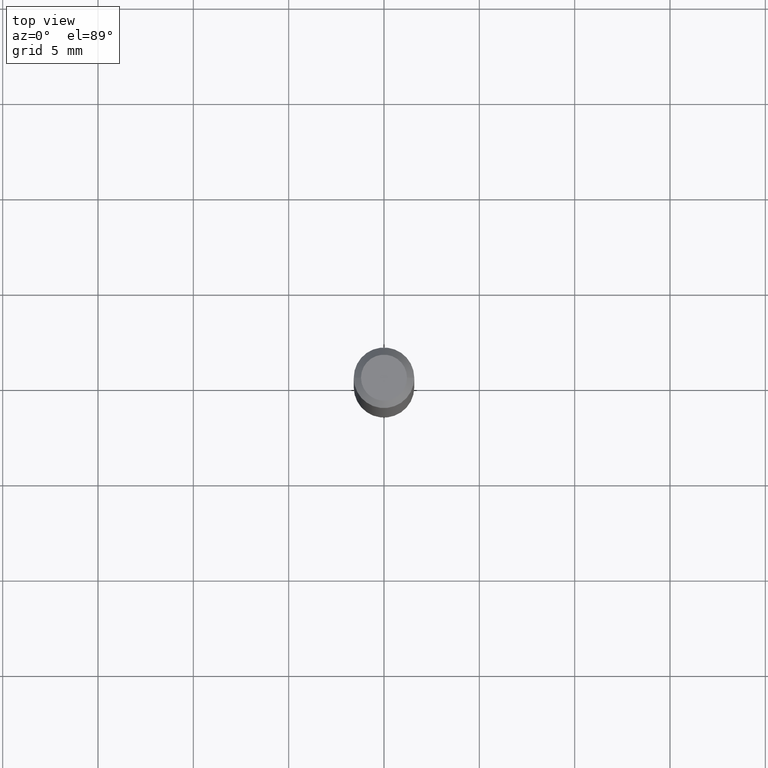
[diagram: clean part render]
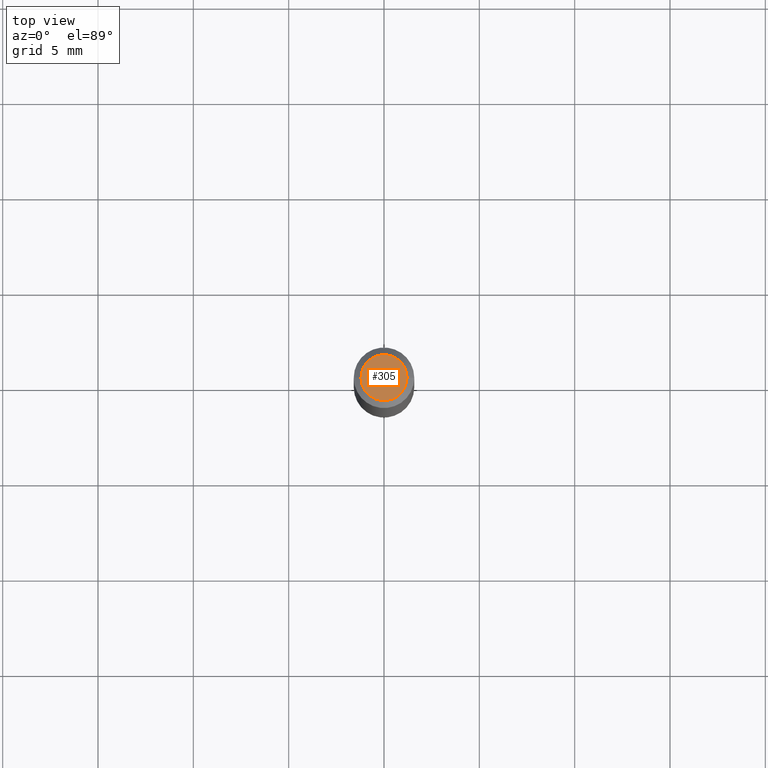
[diagram: same view with one face highlighted and labeled with its STEP entity id]
A machine part, top view. The second image highlights one B-rep face of the part: STEP entity #305.
In plain terms, the highlighted planar face has unit normal (0, -0, -1).
Its self-contained STEP definition (entity closure, byte-faithful):
#26 = ORIENTED_EDGE ( 'NONE', *, *, #340, .T. ) ;
#27 = DIRECTION ( 'NONE',  ( -2.445468806185136597E-29, 3.491481338843145583E-15, 1.000000000000000000 ) ) ;
#65 = AXIS2_PLACEMENT_3D ( 'NONE', #298, #189, #187 ) ;
#79 = DIRECTION ( 'NONE',  ( -2.445468806185136597E-29, 3.491481338843145583E-15, 1.000000000000000000 ) ) ;
#104 = EDGE_CURVE ( 'NONE', #329, #394, #438, .T. ) ;
#105 = CARTESIAN_POINT ( 'NONE',  ( 0.04750000000000000749, -4.035134999187568762E-16, 2.731847993664288856E-16 ) ) ;
#128 = AXIS2_PLACEMENT_3D ( 'NONE', #306, #27, #258 ) ;
#187 = DIRECTION ( 'NONE',  ( -1.000000000000000000, 6.982962677686265922E-15, -4.876176775795935793E-29 ) ) ;
#189 = DIRECTION ( 'NONE',  ( 2.438088387897960049E-29, -3.491481338843145188E-15, -1.000000000000000000 ) ) ;
#199 = DIRECTION ( 'NONE',  ( 1.000000000000000000, -6.982962677686266711E-15, 4.852736867747365086E-29 ) ) ;
#216 = AXIS2_PLACEMENT_3D ( 'NONE', #433, #79, #199 ) ;
#258 = DIRECTION ( 'NONE',  ( 1.000000000000000000, -6.982962677686266711E-15, 4.852736867747365086E-29 ) ) ;
#298 = CARTESIAN_POINT ( 'NONE',  ( 3.316907271900976589E-16, 0.04750000000000000749, -2.925296391183627249E-17 ) ) ;
#305 = ADVANCED_FACE ( 'NONE', ( #422 ), #377, .F. ) ;
#306 = CARTESIAN_POINT ( 'NONE',  ( -6.680649051745406845E-45, 9.538196290434862081E-31, 2.731847993664263218E-16 ) ) ;
#329 = VERTEX_POINT ( 'NONE', #105 ) ;
#340 = EDGE_CURVE ( 'NONE', #394, #329, #387, .T. ) ;
#352 = ORIENTED_EDGE ( 'NONE', *, *, #104, .T. ) ;
#377 = PLANE ( 'NONE',  #65 ) ;
#387 = CIRCLE ( 'NONE', #128, 0.04750000000000000749 ) ;
#394 = VERTEX_POINT ( 'NONE', #502 ) ;
#422 = FACE_OUTER_BOUND ( 'NONE', #445, .T. ) ;
#433 = CARTESIAN_POINT ( 'NONE',  ( -6.680649051745406845E-45, 9.538196290434862081E-31, 2.731847993664263218E-16 ) ) ;
#438 = CIRCLE ( 'NONE', #216, 0.04750000000000000749 ) ;
#445 = EDGE_LOOP ( 'NONE', ( #26, #352 ) ) ;
#502 = CARTESIAN_POINT ( 'NONE',  ( -0.04750000000000000749, 3.578768372314221353E-16, 2.731847993664239060E-16 ) ) ;